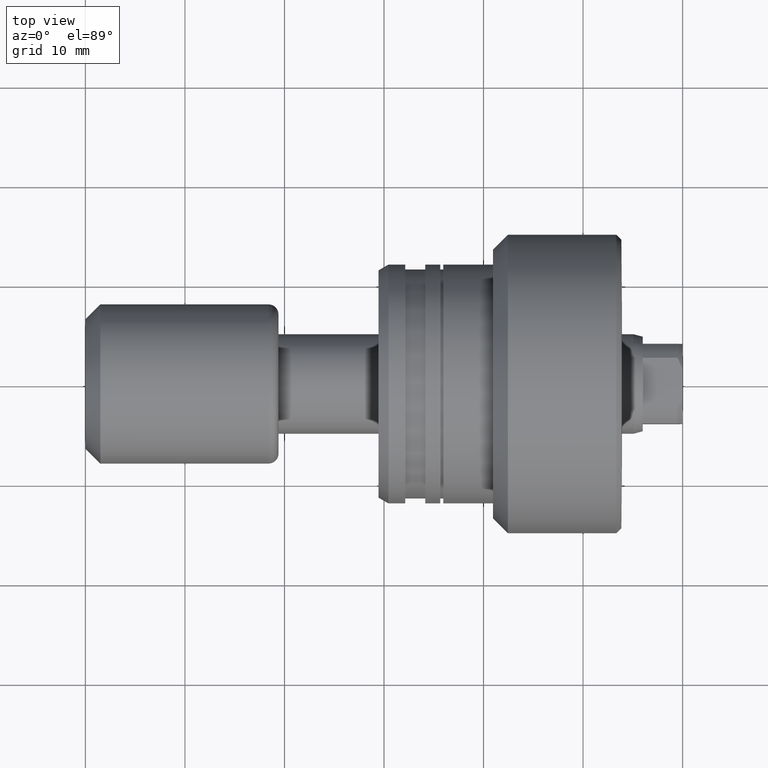
[diagram: clean part render]
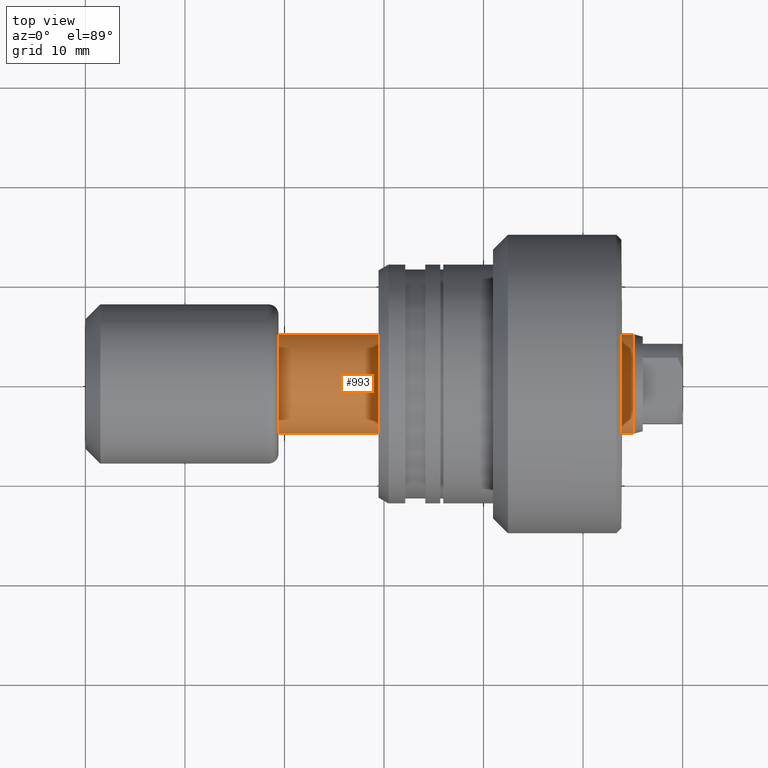
[diagram: same view with one face highlighted and labeled with its STEP entity id]
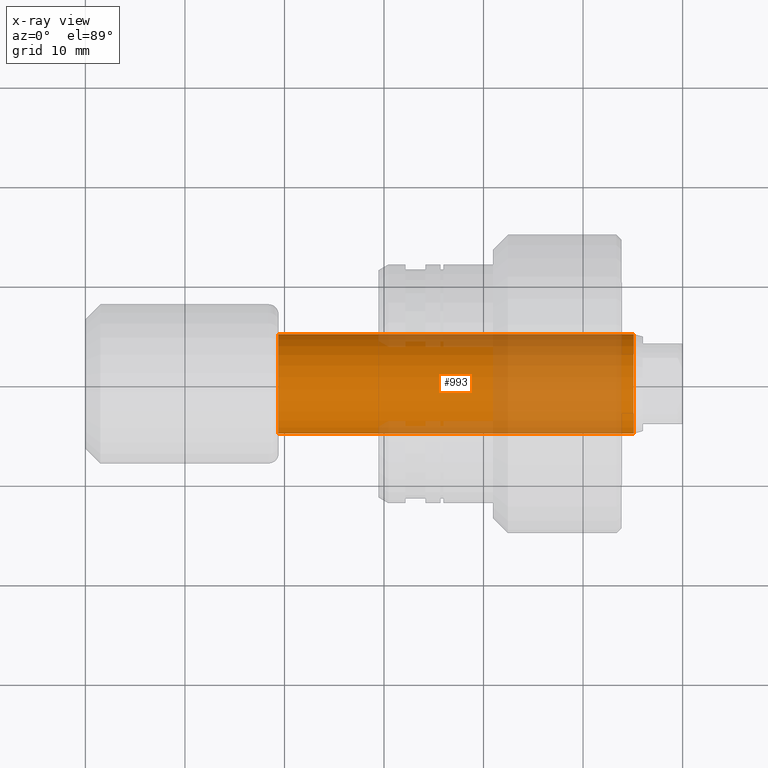
[diagram: x-ray of the same camera — body ghosted, the highlighted face saturated]
A machine part, top view. The second image highlights one B-rep face of the part: STEP entity #993.
The next image is the same camera in x-ray: the body ghosted, the highlighted face saturated — about 44% of this face is hidden behind the body in this view.
In plain terms, the highlighted cylindrical surface (partial cylindrical patch) has radius 5 mm, axis along (-1, -0, -0).
Its self-contained STEP definition (entity closure, byte-faithful):
#36 = DIRECTION ( 'NONE',  ( -1.000000000000000000, -1.069542322069065801E-17, -0.000000000000000000 ) ) ;
#45 = EDGE_LOOP ( 'NONE', ( #979, #1101, #1741, #2079 ) ) ;
#94 = AXIS2_PLACEMENT_3D ( 'NONE', #1306, #1317, #211 ) ;
#165 = DIRECTION ( 'NONE',  ( 0.000000000000000000, -1.000000000000000000, 0.000000000000000000 ) ) ;
#166 = CARTESIAN_POINT ( 'NONE',  ( 55.06675751232377536, 5.000000000000349054, 6.123233995737192267E-16 ) ) ;
#211 = DIRECTION ( 'NONE',  ( 0.000000000000000000, -1.000000000000000000, 0.000000000000000000 ) ) ;
#313 = LINE ( 'NONE', #2356, #2379 ) ;
#327 = CYLINDRICAL_SURFACE ( 'NONE', #2422, 5.000000000000162537 ) ;
#350 = CARTESIAN_POINT ( 'NONE',  ( 0.000000000000000000, 0.000000000000000000, 0.000000000000000000 ) ) ;
#508 = VERTEX_POINT ( 'NONE', #166 ) ;
#516 = FACE_OUTER_BOUND ( 'NONE', #45, .T. ) ;
#606 = CARTESIAN_POINT ( 'NONE',  ( 55.06675751232377536, -5.000000000000347278, 0.000000000000000000 ) ) ;
#642 = AXIS2_PLACEMENT_3D ( 'NONE', #1263, #2427, #165 ) ;
#906 = VERTEX_POINT ( 'NONE', #1999 ) ;
#909 = EDGE_CURVE ( 'NONE', #1911, #906, #2223, .T. ) ;
#979 = ORIENTED_EDGE ( 'NONE', *, *, #1551, .T. ) ;
#993 = ADVANCED_FACE ( 'NONE', ( #516 ), #327, .T. ) ;
#1097 = DIRECTION ( 'NONE',  ( 1.069542322069065801E-17, -1.000000000000000000, 0.000000000000000000 ) ) ;
#1101 = ORIENTED_EDGE ( 'NONE', *, *, #2007, .T. ) ;
#1176 = CIRCLE ( 'NONE', #94, 5.000000000000348166 ) ;
#1263 = CARTESIAN_POINT ( 'NONE',  ( 19.40000000000006253, 2.074912104813994331E-16, 0.000000000000000000 ) ) ;
#1288 = DIRECTION ( 'NONE',  ( -1.000000000000000000, -1.069542322069065801E-17, -0.000000000000000000 ) ) ;
#1301 = VERTEX_POINT ( 'NONE', #606 ) ;
#1306 = CARTESIAN_POINT ( 'NONE',  ( 55.06675751232377536, 5.889622769854493951E-16, 0.000000000000000000 ) ) ;
#1317 = DIRECTION ( 'NONE',  ( -1.000000000000000000, -1.069542322069065801E-17, -0.000000000000000000 ) ) ;
#1364 = LINE ( 'NONE', #1562, #2220 ) ;
#1373 = CARTESIAN_POINT ( 'NONE',  ( 19.40000000000006253, -4.999999999999976019, 0.000000000000000000 ) ) ;
#1551 = EDGE_CURVE ( 'NONE', #1301, #508, #1176, .T. ) ;
#1562 = CARTESIAN_POINT ( 'NONE',  ( 5.347711610345502646E-17, -5.000000000000162537, 0.000000000000000000 ) ) ;
#1741 = ORIENTED_EDGE ( 'NONE', *, *, #909, .F. ) ;
#1807 = EDGE_CURVE ( 'NONE', #1301, #1911, #1364, .T. ) ;
#1836 = DIRECTION ( 'NONE',  ( -1.000000000000000000, -1.069542322069065801E-17, -0.000000000000000000 ) ) ;
#1911 = VERTEX_POINT ( 'NONE', #1373 ) ;
#1999 = CARTESIAN_POINT ( 'NONE',  ( 19.40000000000006253, 4.999999999999976019, 6.123233995736851085E-16 ) ) ;
#2007 = EDGE_CURVE ( 'NONE', #508, #906, #313, .T. ) ;
#2079 = ORIENTED_EDGE ( 'NONE', *, *, #1807, .F. ) ;
#2220 = VECTOR ( 'NONE', #36, 1000.000000000000000 ) ;
#2223 = CIRCLE ( 'NONE', #642, 4.999999999999976019 ) ;
#2356 = CARTESIAN_POINT ( 'NONE',  ( -5.347711610345502646E-17, 5.000000000000162537, 6.123233995736964484E-16 ) ) ;
#2379 = VECTOR ( 'NONE', #1836, 1000.000000000000000 ) ;
#2422 = AXIS2_PLACEMENT_3D ( 'NONE', #350, #1288, #1097 ) ;
#2427 = DIRECTION ( 'NONE',  ( -1.000000000000000000, -1.069542322069065801E-17, -0.000000000000000000 ) ) ;